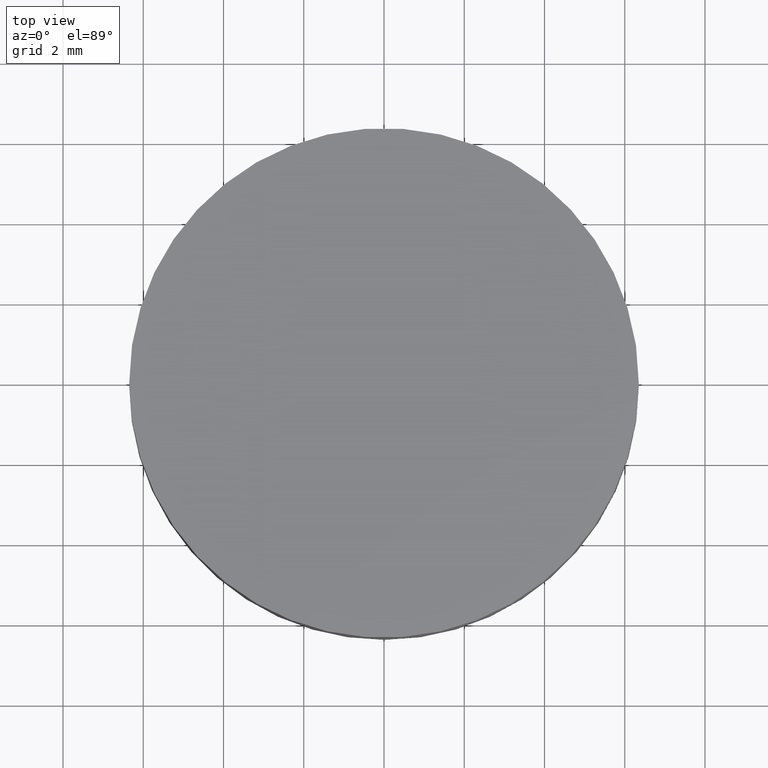
[diagram: clean part render]
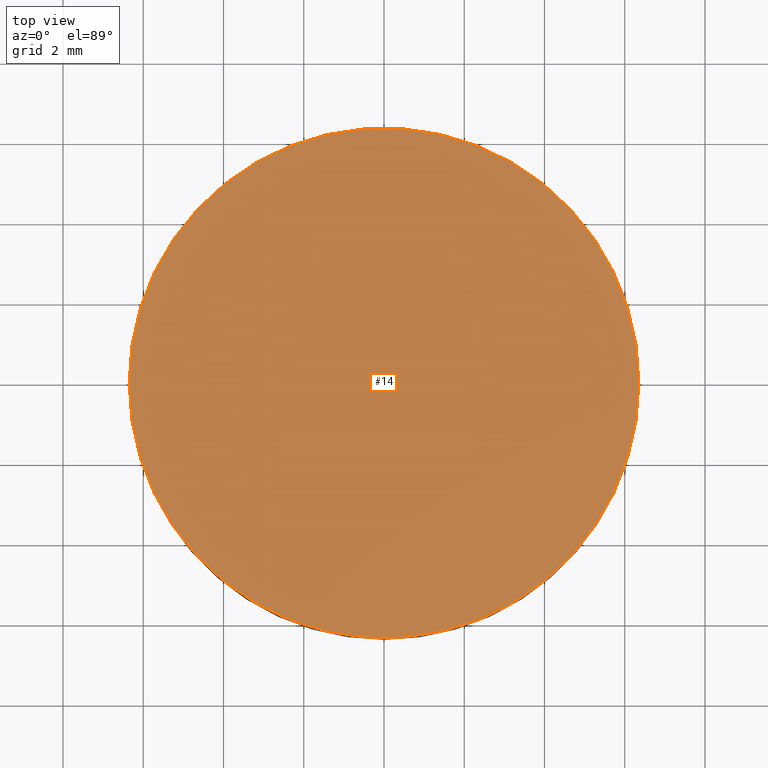
[diagram: same view with one face highlighted and labeled with its STEP entity id]
A machine part, top view. The second image highlights one B-rep face of the part: STEP entity #14.
In plain terms, the highlighted planar face has unit normal (0, 0, 1).
Its self-contained STEP definition (entity closure, byte-faithful):
#4 = EDGE_CURVE ( 'NONE', #113, #148, #168, .T. ) ;
#8 = EDGE_LOOP ( 'NONE', ( #199, #117 ) ) ;
#14 = ADVANCED_FACE ( 'NONE', ( #139 ), #194, .T. ) ;
#16 = DIRECTION ( 'NONE',  ( 0.0000000000000000000, 0.0000000000000000000, 1.000000000000000000 ) ) ;
#37 = DIRECTION ( 'NONE',  ( 1.000000000000000000, 0.0000000000000000000, 0.0000000000000000000 ) ) ;
#68 = DIRECTION ( 'NONE',  ( -0.0000000000000000000, -0.0000000000000000000, -1.000000000000000000 ) ) ;
#83 = CIRCLE ( 'NONE', #188, 6.349999999999999600 ) ;
#101 = AXIS2_PLACEMENT_3D ( 'NONE', #215, #214, #138 ) ;
#113 = VERTEX_POINT ( 'NONE', #202 ) ;
#117 = ORIENTED_EDGE ( 'NONE', *, *, #119, .F. ) ;
#119 = EDGE_CURVE ( 'NONE', #148, #113, #83, .T. ) ;
#134 = CARTESIAN_POINT ( 'NONE',  ( 0.0000000000000000000, 13.15799999999999900, 2.399999999999999900 ) ) ;
#138 = DIRECTION ( 'NONE',  ( 1.000000000000000000, 0.0000000000000000000, 0.0000000000000000000 ) ) ;
#139 = FACE_OUTER_BOUND ( 'NONE', #8, .T. ) ;
#148 = VERTEX_POINT ( 'NONE', #217 ) ;
#160 = AXIS2_PLACEMENT_3D ( 'NONE', #134, #16, #233 ) ;
#168 = CIRCLE ( 'NONE', #101, 6.349999999999999600 ) ;
#174 = CARTESIAN_POINT ( 'NONE',  ( 2.498001805406600200E-016, 1.221245327087670000E-015, 2.399999999999999900 ) ) ;
#188 = AXIS2_PLACEMENT_3D ( 'NONE', #174, #68, #37 ) ;
#194 = PLANE ( 'NONE',  #160 ) ;
#199 = ORIENTED_EDGE ( 'NONE', *, *, #4, .F. ) ;
#202 = CARTESIAN_POINT ( 'NONE',  ( 6.349999999999999600, 1.221245327087670000E-015, 2.399999999999999900 ) ) ;
#214 = DIRECTION ( 'NONE',  ( -0.0000000000000000000, -0.0000000000000000000, -1.000000000000000000 ) ) ;
#215 = CARTESIAN_POINT ( 'NONE',  ( 2.498001805406600200E-016, 1.221245327087670000E-015, 2.399999999999999900 ) ) ;
#217 = CARTESIAN_POINT ( 'NONE',  ( -6.349999999999999600, 1.998896044546239400E-015, 2.399999999999999900 ) ) ;
#233 = DIRECTION ( 'NONE',  ( 1.000000000000000000, 0.0000000000000000000, -0.0000000000000000000 ) ) ;